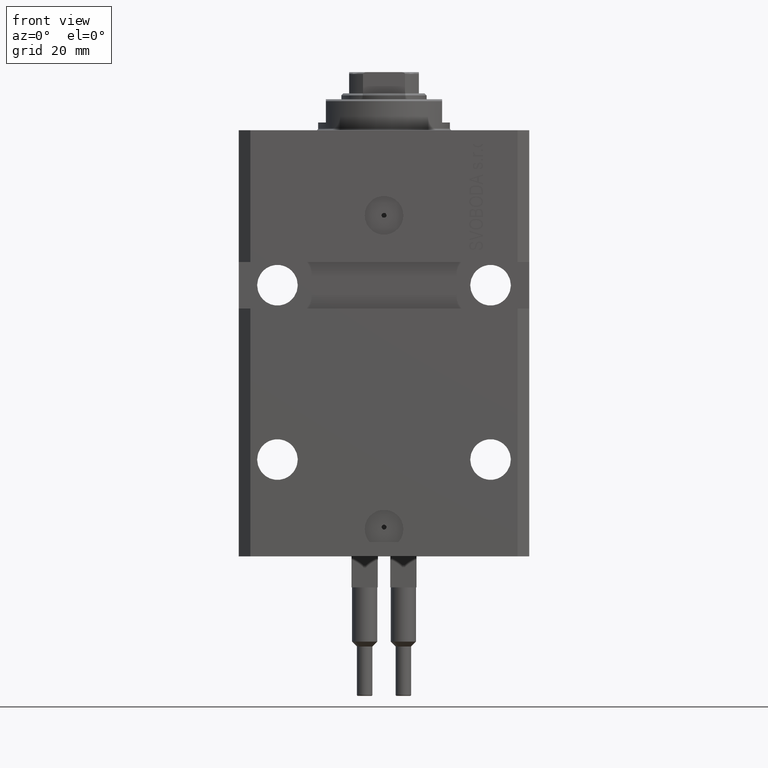
[diagram: clean part render]
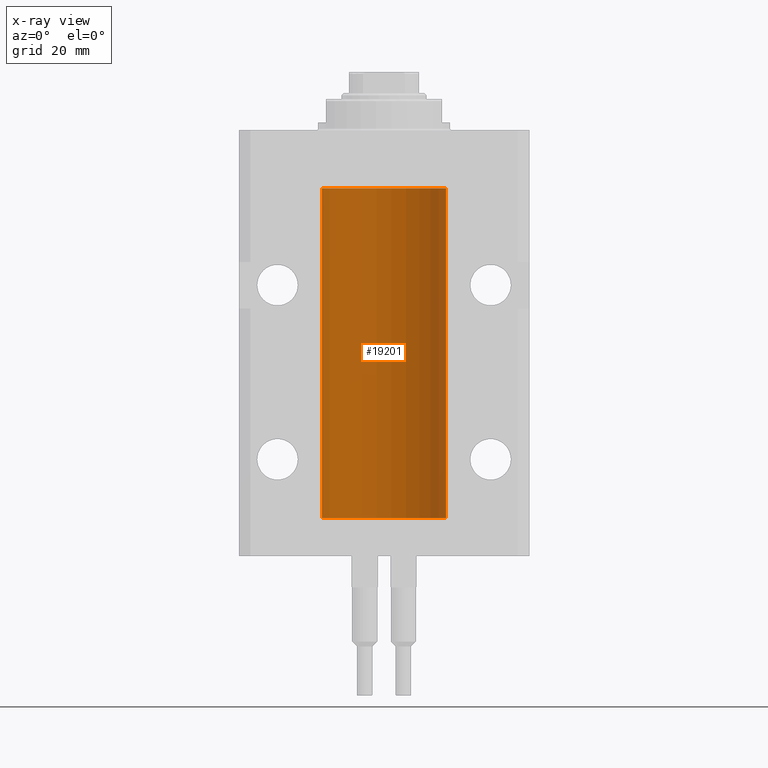
[diagram: x-ray — body ghosted, one internal face saturated and labeled with its STEP entity id]
A machine part, front view, then the same camera in x-ray: the body is ghosted and one INTERNAL B-rep face — a face not visible from any outside direction — is saturated and labeled: STEP entity #19201.
In plain terms, the highlighted cylindrical surface (partial cylindrical patch) has radius 16 mm, axis along (0, 0, 1).
Its self-contained STEP definition (entity closure, byte-faithful):
#414 = CARTESIAN_POINT ( 'NONE',  ( -15.98778717651346604, 0.6250289588122097673, -98.08131585687051768 ) ) ;
#666 = EDGE_CURVE ( 'NONE', #28018, #4142, #27499, .T. ) ;
#2197 = CARTESIAN_POINT ( 'NONE',  ( -15.99548640841683067, 0.3843705577988847377, -21.50046628527008608 ) ) ;
#2428 = ORIENTED_EDGE ( 'NONE', *, *, #22880, .T. ) ;
#2584 = CARTESIAN_POINT ( 'NONE',  ( -16.00000000000013145, 3.685127038166941002E-13, -22.62500000000341771 ) ) ;
#2913 = CARTESIAN_POINT ( 'NONE',  ( 0.000000000000000000, 0.000000000000000000, -100.0999999999999943 ) ) ;
#3478 = DIRECTION ( 'NONE',  ( -0.000000000000000000, -0.000000000000000000, 1.000000000000000000 ) ) ;
#4067 = CARTESIAN_POINT ( 'NONE',  ( -16.00000000000000000, -1.303459030566954747E-14, -97.37500000000000000 ) ) ;
#4142 = VERTEX_POINT ( 'NONE', #42115 ) ;
#4275 = DIRECTION ( 'NONE',  ( -0.000000000000000000, -0.000000000000000000, 1.000000000000000000 ) ) ;
#4545 = CARTESIAN_POINT ( 'NONE',  ( -15.99548640841682712, 0.3843705577988784650, -97.50046628527007897 ) ) ;
#5174 = DIRECTION ( 'NONE',  ( 0.000000000000000000, 0.000000000000000000, 1.000000000000000000 ) ) ;
#5814 = ORIENTED_EDGE ( 'NONE', *, *, #20314, .F. ) ;
#6086 = CARTESIAN_POINT ( 'NONE',  ( -15.99707730059171240, 0.3150375992092407373, -21.45402333202571654 ) ) ;
#6188 = VERTEX_POINT ( 'NONE', #40395 ) ;
#6566 = CARTESIAN_POINT ( 'NONE',  ( -15.98778717651346071, 0.6250289588122140971, -22.08131585687052478 ) ) ;
#7567 = FACE_OUTER_BOUND ( 'NONE', #29483, .T. ) ;
#7752 = ORIENTED_EDGE ( 'NONE', *, *, #17620, .T. ) ;
#8527 = ORIENTED_EDGE ( 'NONE', *, *, #666, .T. ) ;
#10328 = EDGE_CURVE ( 'NONE', #37282, #39161, #29932, .T. ) ;
#10907 = ORIENTED_EDGE ( 'NONE', *, *, #30422, .F. ) ;
#11458 = DIRECTION ( 'NONE',  ( 1.000000000000000000, 0.000000000000000000, 0.000000000000000000 ) ) ;
#11613 = CARTESIAN_POINT ( 'NONE',  ( -15.99228023727724057, 0.5003781296993360383, -98.38347829554236057 ) ) ;
#12994 = AXIS2_PLACEMENT_3D ( 'NONE', #13212, #5174, #27838 ) ;
#13212 = CARTESIAN_POINT ( 'NONE',  ( 0.000000000000000000, 0.000000000000000000, -15.00000000000000000 ) ) ;
#14116 = CARTESIAN_POINT ( 'NONE',  ( -16.00000000000000711, 0.08259886010189904093, -21.37500000000000000 ) ) ;
#15246 = CARTESIAN_POINT ( 'NONE',  ( -16.00000000000000000, 1.959434878635765131E-15, -100.0999999999999943 ) ) ;
#15361 = CYLINDRICAL_SURFACE ( 'NONE', #42585, 16.00000000000000000 ) ;
#16963 = B_SPLINE_CURVE_WITH_KNOTS ( 'NONE', 3,
 ( #44720, #14116, #43115, #6086, #2197, #17069, #35581, #6566, #29885, #40197, #32651, #21689, #43596, #24381 ),
 .UNSPECIFIED., .F., .F.,
 ( 4, 2, 2, 2, 2, 2, 4 ),
 ( 1.597328219370744179E-19, 0.0002442776652680942405, 0.0004885553305361882643, 0.0009771106610723839011, 0.001221388326340481665, 0.001465665991608579430, 0.001954221322144767369 ),
 .UNSPECIFIED. ) ;
#17069 = CARTESIAN_POINT ( 'NONE',  ( -15.99070653155267685, 0.5573233280232986475, -21.67348148680506625 ) ) ;
#17620 = EDGE_CURVE ( 'NONE', #4142, #39161, #34004, .T. ) ;
#17784 = DIRECTION ( 'NONE',  ( 1.000000000000000000, 0.000000000000000000, 0.000000000000000000 ) ) ;
#18142 = CARTESIAN_POINT ( 'NONE',  ( -16.00000000000000000, 1.959434878635765131E-15, -15.00000000000000000 ) ) ;
#18372 = VECTOR ( 'NONE', #3478, 1000.000000000000000 ) ;
#18944 = CARTESIAN_POINT ( 'NONE',  ( -16.00000000000000711, 0.08259886010188650929, -97.37500000000000000 ) ) ;
#19201 = ADVANCED_FACE ( 'NONE', ( #7567 ), #15361, .F. ) ;
#19215 = DIRECTION ( 'NONE',  ( -0.000000000000000000, -0.000000000000000000, 1.000000000000000000 ) ) ;
#20314 = EDGE_CURVE ( 'NONE', #28018, #28208, #22400, .T. ) ;
#21689 = CARTESIAN_POINT ( 'NONE',  ( -15.99711699979842017, 0.3253759916140657737, -22.55856151623175521 ) ) ;
#22400 = CIRCLE ( 'NONE', #23203, 16.00000000000000000 ) ;
#22690 = DIRECTION ( 'NONE',  ( -0.000000000000000000, -0.000000000000000000, 1.000000000000000000 ) ) ;
#22880 = EDGE_CURVE ( 'NONE', #37282, #34995, #16963, .T. ) ;
#23125 = DIRECTION ( 'NONE',  ( -0.000000000000000000, -0.000000000000000000, 1.000000000000000000 ) ) ;
#23203 = AXIS2_PLACEMENT_3D ( 'NONE', #2913, #32162, #17784 ) ;
#24381 = CARTESIAN_POINT ( 'NONE',  ( -16.00000000000013145, 3.685127038166941002E-13, -22.62500000000341771 ) ) ;
#24834 = ORIENTED_EDGE ( 'NONE', *, *, #46608, .T. ) ;
#26277 = CARTESIAN_POINT ( 'NONE',  ( -16.00000000000000000, 1.959434878635765131E-15, -100.0999999999999943 ) ) ;
#26483 = CARTESIAN_POINT ( 'NONE',  ( -15.99711699979841661, 0.3253759916140614439, -98.55856151623174810 ) ) ;
#27044 = CARTESIAN_POINT ( 'NONE',  ( -16.00000000000000000, 1.643679961284177128E-16, -21.37499999999999645 ) ) ;
#27266 = CARTESIAN_POINT ( 'NONE',  ( 16.00000000000000000, 0.000000000000000000, -100.0999999999999943 ) ) ;
#27382 = VECTOR ( 'NONE', #23125, 1000.000000000000000 ) ;
#27499 = LINE ( 'NONE', #27266, #27382 ) ;
#27838 = DIRECTION ( 'NONE',  ( 1.000000000000000000, 0.000000000000000000, 0.000000000000000000 ) ) ;
#28018 = VERTEX_POINT ( 'NONE', #28229 ) ;
#28208 = VERTEX_POINT ( 'NONE', #47441 ) ;
#28229 = CARTESIAN_POINT ( 'NONE',  ( 16.00000000000000000, 0.000000000000000000, -100.0999999999999943 ) ) ;
#29483 = EDGE_LOOP ( 'NONE', ( #29917, #5814, #8527, #7752, #35327, #2428, #10907, #24834 ) ) ;
#29885 = CARTESIAN_POINT ( 'NONE',  ( -15.98844267028591482, 0.6088369347963316081, -22.16324735024328518 ) ) ;
#29900 = CARTESIAN_POINT ( 'NONE',  ( -16.00000000000013145, 3.685127046438747128E-13, -98.62500000000343903 ) ) ;
#29917 = ORIENTED_EDGE ( 'NONE', *, *, #44871, .F. ) ;
#29932 = LINE ( 'NONE', #26277, #32306 ) ;
#30140 = CARTESIAN_POINT ( 'NONE',  ( -15.99070426498503572, 0.5462220647145610286, -98.31460064614144301 ) ) ;
#30366 = LINE ( 'NONE', #15246, #42864 ) ;
#30422 = EDGE_CURVE ( 'NONE', #6188, #34995, #40521, .T. ) ;
#31995 = B_SPLINE_CURVE_WITH_KNOTS ( 'NONE', 3,
 ( #4067, #18944, #37450, #33795, #4545, #41584, #34029, #414, #41339, #30140, #11613, #26483, #34280, #29900 ),
 .UNSPECIFIED., .F., .F.,
 ( 4, 2, 2, 2, 2, 2, 4 ),
 ( 1.003919637555167698E-18, 0.0002442776652680894158, 0.0004885553305361776391, 0.0009771106610723541940, 0.001221388326340463017, 0.001465665991608572274, 0.001954221322144760863 ),
 .UNSPECIFIED. ) ;
#32162 = DIRECTION ( 'NONE',  ( 0.000000000000000000, 0.000000000000000000, 1.000000000000000000 ) ) ;
#32306 = VECTOR ( 'NONE', #19215, 1000.000000000000000 ) ;
#32484 = CARTESIAN_POINT ( 'NONE',  ( -16.00000000000000000, 1.959434878635765131E-15, -100.0999999999999943 ) ) ;
#32651 = CARTESIAN_POINT ( 'NONE',  ( -15.99228023727724413, 0.5003781296993413674, -22.38347829554236057 ) ) ;
#33671 = CARTESIAN_POINT ( 'NONE',  ( -16.00000000000013145, 3.685127046438747128E-13, -98.62500000000343903 ) ) ;
#33795 = CARTESIAN_POINT ( 'NONE',  ( -15.99707730059171240, 0.3150375992092294686, -97.45402333202572720 ) ) ;
#34004 = CIRCLE ( 'NONE', #12994, 16.00000000000000000 ) ;
#34029 = CARTESIAN_POINT ( 'NONE',  ( -15.98779057735153941, 0.6249419637998017141, -97.83670145863504786 ) ) ;
#34280 = CARTESIAN_POINT ( 'NONE',  ( -15.99999999999998934, 0.1631714642025804407, -98.62499999999987210 ) ) ;
#34995 = VERTEX_POINT ( 'NONE', #2584 ) ;
#35327 = ORIENTED_EDGE ( 'NONE', *, *, #10328, .F. ) ;
#35581 = CARTESIAN_POINT ( 'NONE',  ( -15.98779057735153941, 0.6249419637998100407, -21.83670145863507273 ) ) ;
#37282 = VERTEX_POINT ( 'NONE', #27044 ) ;
#37450 = CARTESIAN_POINT ( 'NONE',  ( -15.99934216141748244, 0.1636497843296308152, -97.39126528029306940 ) ) ;
#39161 = VERTEX_POINT ( 'NONE', #18142 ) ;
#40197 = CARTESIAN_POINT ( 'NONE',  ( -15.99070426498503217, 0.5462220647145618058, -22.31460064614143590 ) ) ;
#40330 = VERTEX_POINT ( 'NONE', #33671 ) ;
#40395 = CARTESIAN_POINT ( 'NONE',  ( -16.00000000000000000, -1.303459030566954747E-14, -97.37500000000000000 ) ) ;
#40521 = LINE ( 'NONE', #32484, #18372 ) ;
#41339 = CARTESIAN_POINT ( 'NONE',  ( -15.98844267028590949, 0.6088369347963275002, -98.16324735024325321 ) ) ;
#41584 = CARTESIAN_POINT ( 'NONE',  ( -15.99070653155267685, 0.5573233280232928744, -97.67348148680505915 ) ) ;
#42115 = CARTESIAN_POINT ( 'NONE',  ( 16.00000000000000000, 0.000000000000000000, -15.00000000000000000 ) ) ;
#42585 = AXIS2_PLACEMENT_3D ( 'NONE', #44829, #22690, #11458 ) ;
#42864 = VECTOR ( 'NONE', #4275, 1000.000000000000000 ) ;
#43115 = CARTESIAN_POINT ( 'NONE',  ( -15.99934216141748244, 0.1636497843296417787, -21.39126528029306229 ) ) ;
#43596 = CARTESIAN_POINT ( 'NONE',  ( -16.00000000000000000, 0.1631714642025800244, -22.62499999999985789 ) ) ;
#44720 = CARTESIAN_POINT ( 'NONE',  ( -16.00000000000000000, 1.643679961284177128E-16, -21.37499999999999645 ) ) ;
#44829 = CARTESIAN_POINT ( 'NONE',  ( 0.000000000000000000, 0.000000000000000000, -100.0999999999999943 ) ) ;
#44871 = EDGE_CURVE ( 'NONE', #28208, #40330, #30366, .T. ) ;
#46608 = EDGE_CURVE ( 'NONE', #6188, #40330, #31995, .T. ) ;
#47441 = CARTESIAN_POINT ( 'NONE',  ( -16.00000000000000000, 1.959434878635765131E-15, -100.0999999999999943 ) ) ;